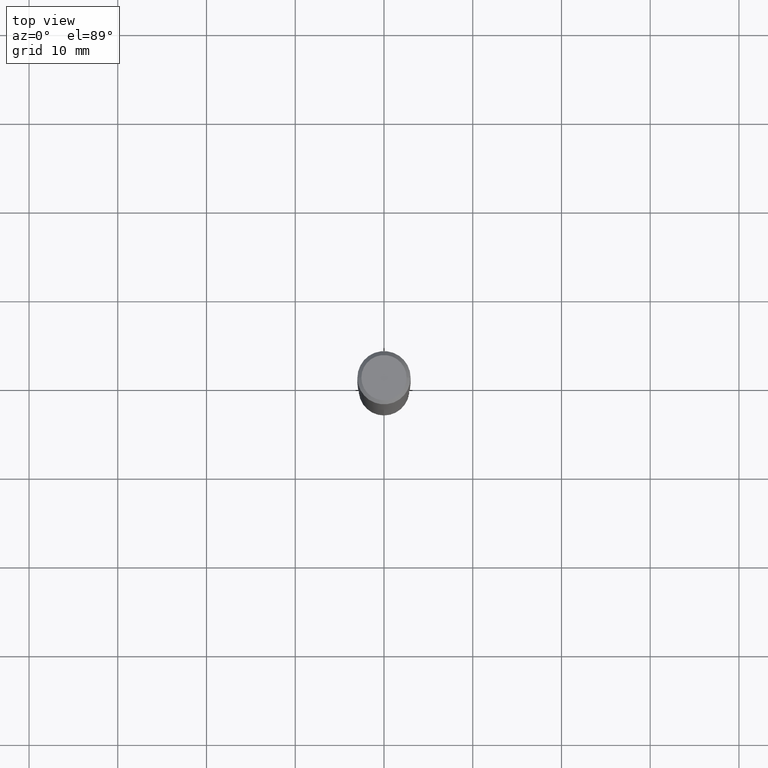
[diagram: clean part render]
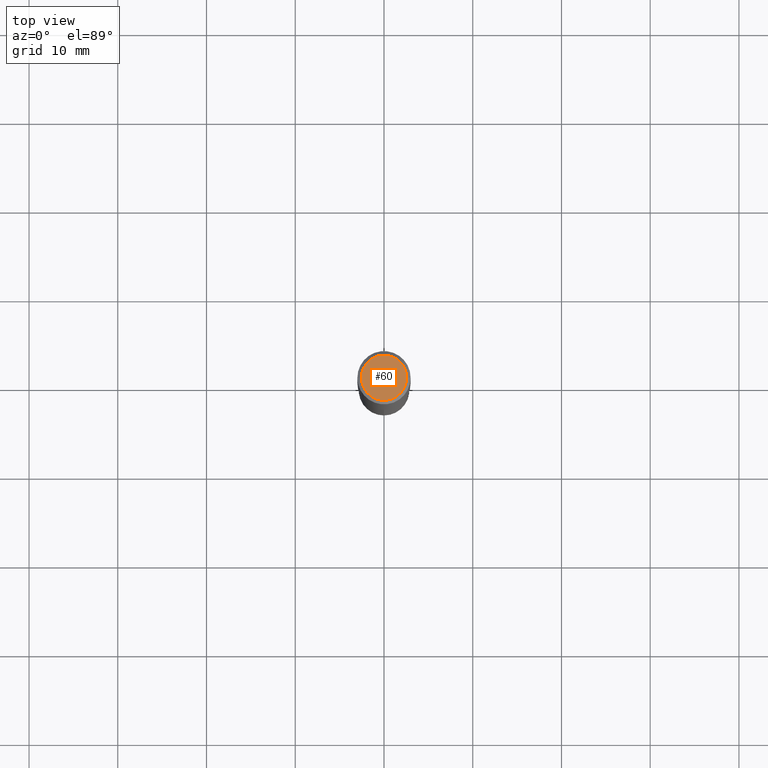
[diagram: same view with one face highlighted and labeled with its STEP entity id]
A machine part, top view. The second image highlights one B-rep face of the part: STEP entity #60.
In plain terms, the highlighted planar face has unit normal (0, -0, -1).
Its self-contained STEP definition (entity closure, byte-faithful):
#21 = DIRECTION ( 'NONE',  ( -2.445468806185136597E-29, 3.491481338843145583E-15, 1.000000000000000000 ) ) ;
#60 = ADVANCED_FACE ( 'NONE', ( #402 ), #64, .F. ) ;
#64 = PLANE ( 'NONE',  #84 ) ;
#83 = EDGE_CURVE ( 'NONE', #123, #392, #481, .T. ) ;
#84 = AXIS2_PLACEMENT_3D ( 'NONE', #368, #254, #477 ) ;
#114 = DIRECTION ( 'NONE',  ( -2.445468806185136597E-29, 3.491481338843145583E-15, 1.000000000000000000 ) ) ;
#119 = AXIS2_PLACEMENT_3D ( 'NONE', #408, #21, #441 ) ;
#123 = VERTEX_POINT ( 'NONE', #159 ) ;
#151 = EDGE_CURVE ( 'NONE', #392, #123, #374, .T. ) ;
#159 = CARTESIAN_POINT ( 'NONE',  ( 0.1003850000000000159, -7.803837484803599345E-16, -2.049109640502812012E-17 ) ) ;
#166 = ORIENTED_EDGE ( 'NONE', *, *, #83, .T. ) ;
#171 = CARTESIAN_POINT ( 'NONE',  ( -0.1003850000000000159, 7.319105043583386689E-16, -2.049109640503831060E-17 ) ) ;
#202 = EDGE_LOOP ( 'NONE', ( #237, #166 ) ) ;
#223 = AXIS2_PLACEMENT_3D ( 'NONE', #345, #114, #305 ) ;
#237 = ORIENTED_EDGE ( 'NONE', *, *, #151, .T. ) ;
#254 = DIRECTION ( 'NONE',  ( 2.438088387897960049E-29, -3.491481338843145188E-15, -1.000000000000000000 ) ) ;
#305 = DIRECTION ( 'NONE',  ( 1.000000000000000000, -6.982962677686266711E-15, 4.875668750515085695E-29 ) ) ;
#345 = CARTESIAN_POINT ( 'NONE',  ( 5.011033706304132718E-46, -7.154428071060963220E-32, -2.049109640503330010E-17 ) ) ;
#368 = CARTESIAN_POINT ( 'NONE',  ( 2.505516853152066359E-46, -3.577214035530481610E-32, -1.024554820251665005E-17 ) ) ;
#374 = CIRCLE ( 'NONE', #223, 0.1003850000000000159 ) ;
#392 = VERTEX_POINT ( 'NONE', #171 ) ;
#402 = FACE_OUTER_BOUND ( 'NONE', #202, .T. ) ;
#408 = CARTESIAN_POINT ( 'NONE',  ( 5.011033706304132718E-46, -7.154428071060963220E-32, -2.049109640503330010E-17 ) ) ;
#441 = DIRECTION ( 'NONE',  ( 1.000000000000000000, -6.982962677686266711E-15, 4.875668750515085695E-29 ) ) ;
#477 = DIRECTION ( 'NONE',  ( -1.000000000000000000, 6.982962677686265922E-15, -4.876176775795935793E-29 ) ) ;
#481 = CIRCLE ( 'NONE', #119, 0.1003850000000000159 ) ;